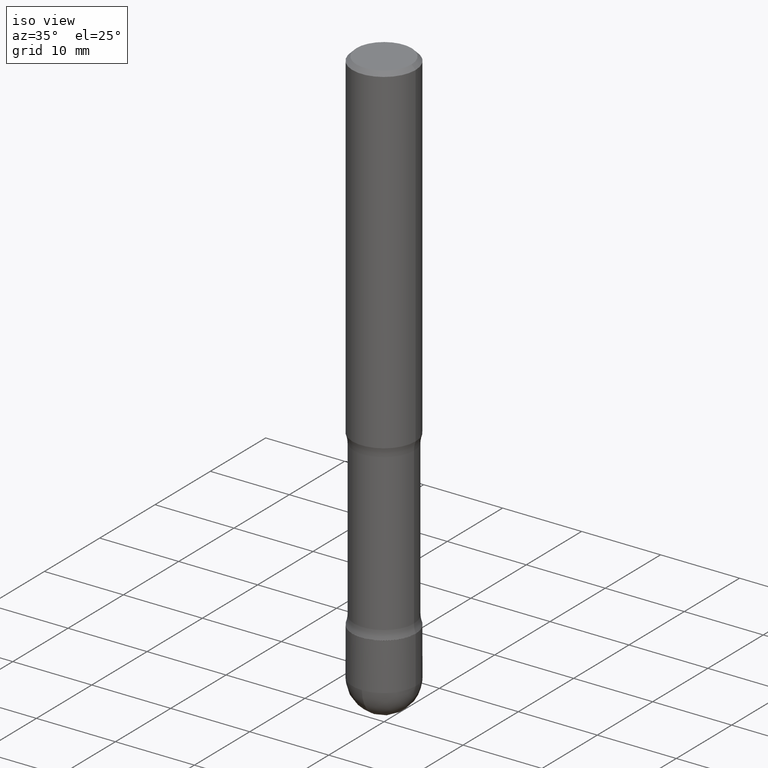
[diagram: clean part render]
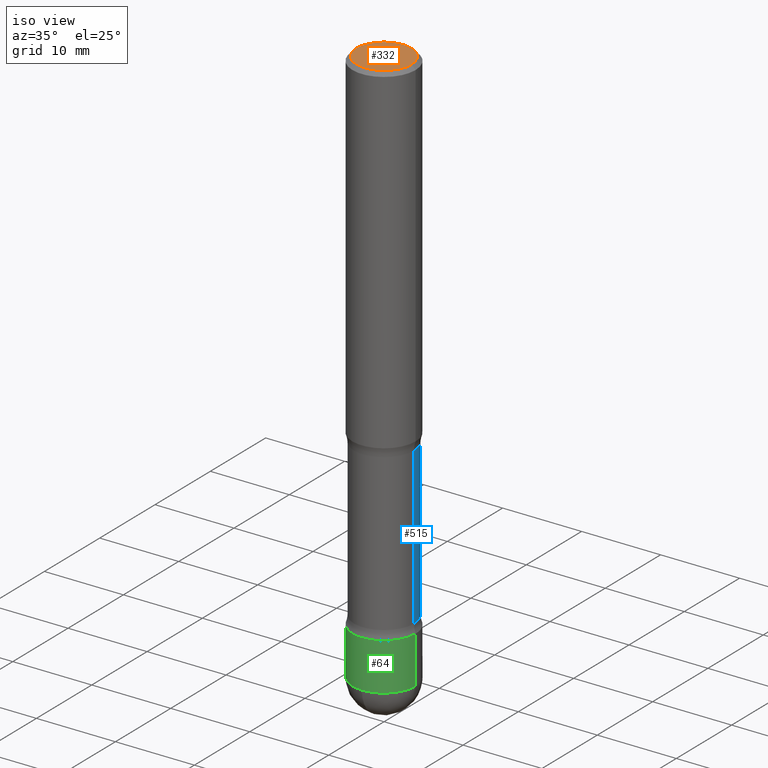
[diagram: same view with three faces highlighted in distinct colors, each labeled with its STEP entity id]
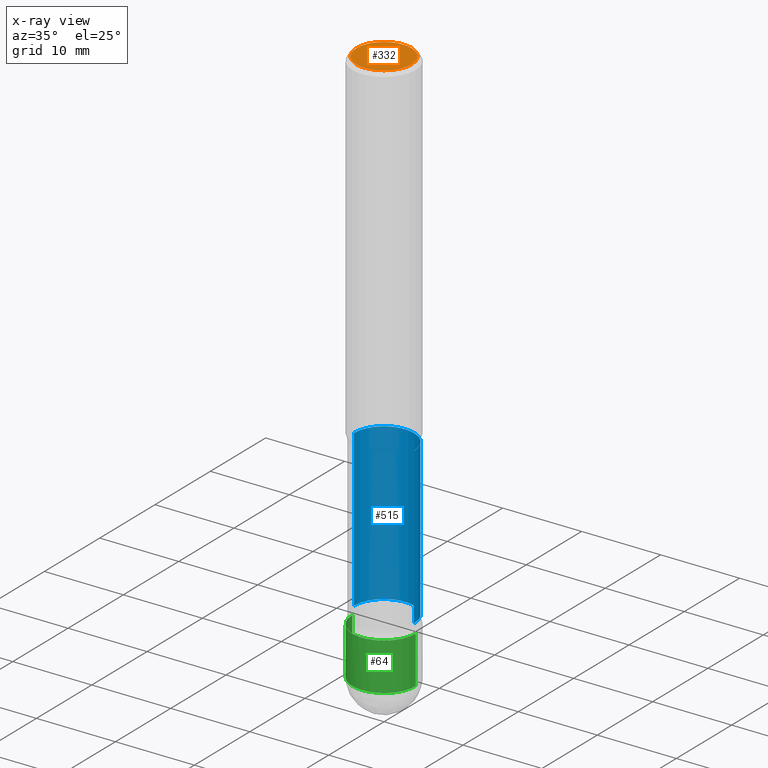
[diagram: x-ray of the same camera — body ghosted, the three highlighted faces saturated]
A machine part, iso view with three faces highlighted in distinct colors.
The next image is the same camera in x-ray (body ghosted, the three faces saturated) — at least one of them is partly hidden behind the body in this view.
Their STEP definitions:

[orange] entity #332 — the highlighted planar face has unit normal (-0, 0, 1).
#3 = AXIS2_PLACEMENT_3D ( 'NONE', #98, #523, #449 ) ;
#33 = DIRECTION ( 'NONE',  ( -1.000000000000000000, 6.982962677686265922E-15, -4.876176775795935793E-29 ) ) ;
#48 = DIRECTION ( 'NONE',  ( 1.000000000000000000, -6.982962677686265922E-15, 4.876176775795935793E-29 ) ) ;
#51 = FACE_OUTER_BOUND ( 'NONE', #57, .T. ) ;
#57 = EDGE_LOOP ( 'NONE', ( #444, #560 ) ) ;
#80 = VERTEX_POINT ( 'NONE', #550 ) ;
#98 = CARTESIAN_POINT ( 'NONE',  ( 0.000000000000000000, 0.000000000000000000, 0.000000000000000000 ) ) ;
#129 = CARTESIAN_POINT ( 'NONE',  ( -0.1374999999999997335, 9.601573681818597005E-16, -6.704743066719399103E-30 ) ) ;
#134 = VERTEX_POINT ( 'NONE', #129 ) ;
#213 = EDGE_CURVE ( 'NONE', #134, #80, #374, .T. ) ;
#232 = CIRCLE ( 'NONE', #486, 0.1374999999999997335 ) ;
#253 = CARTESIAN_POINT ( 'NONE',  ( 0.000000000000000000, 0.000000000000000000, 0.000000000000000000 ) ) ;
#275 = PLANE ( 'NONE',  #279 ) ;
#279 = AXIS2_PLACEMENT_3D ( 'NONE', #453, #412, #48 ) ;
#332 = ADVANCED_FACE ( 'NONE', ( #51 ), #275, .T. ) ;
#374 = CIRCLE ( 'NONE', #3, 0.1374999999999997335 ) ;
#412 = DIRECTION ( 'NONE',  ( -2.438088387897960049E-29, 3.491481338843145188E-15, 1.000000000000000000 ) ) ;
#430 = DIRECTION ( 'NONE',  ( 2.445468806185136597E-29, -3.491481338843145583E-15, -1.000000000000000000 ) ) ;
#444 = ORIENTED_EDGE ( 'NONE', *, *, #213, .F. ) ;
#449 = DIRECTION ( 'NONE',  ( -1.000000000000000000, 6.982962677686265922E-15, -4.876176775795935793E-29 ) ) ;
#453 = CARTESIAN_POINT ( 'NONE',  ( 9.601573681818597005E-16, 0.1374999999999997335, -4.779444278458813133E-16 ) ) ;
#466 = EDGE_CURVE ( 'NONE', #80, #134, #232, .T. ) ;
#486 = AXIS2_PLACEMENT_3D ( 'NONE', #253, #430, #33 ) ;
#523 = DIRECTION ( 'NONE',  ( 2.445468806185136597E-29, -3.491481338843145583E-15, -1.000000000000000000 ) ) ;
#550 = CARTESIAN_POINT ( 'NONE',  ( 0.1374999999999997335, -1.046838268059730322E-15, 7.017535886221982554E-30 ) ) ;
#560 = ORIENTED_EDGE ( 'NONE', *, *, #466, .F. ) ;

[blue] entity #515 — the highlighted cylindrical surface (partial cylindrical patch) has radius 3.7973 mm, axis along (0, -0, -1).
#5 = VERTEX_POINT ( 'NONE', #70 ) ;
#10 = CARTESIAN_POINT ( 'NONE',  ( 6.258199221908381703E-29, -8.935049894233492186E-15, -2.559099999999999486 ) ) ;
#35 = CARTESIAN_POINT ( 'NONE',  ( -0.1495000000000001328, -5.020750165256446212E-15, -1.736999999999999877 ) ) ;
#70 = CARTESIAN_POINT ( 'NONE',  ( 0.1495000000000001328, -7.040976938773929541E-15, -1.736999999999999877 ) ) ;
#96 = CYLINDRICAL_SURFACE ( 'NONE', #206, 0.1494999999999999107 ) ;
#109 = VECTOR ( 'NONE', #125, 39.37007874015748143 ) ;
#125 = DIRECTION ( 'NONE',  ( 2.445468806185136877E-29, -3.491481338843145188E-15, -1.000000000000000000 ) ) ;
#149 = EDGE_CURVE ( 'NONE', #5, #425, #451, .T. ) ;
#152 = AXIS2_PLACEMENT_3D ( 'NONE', #478, #210, #249 ) ;
#174 = ORIENTED_EDGE ( 'NONE', *, *, #149, .T. ) ;
#176 = DIRECTION ( 'NONE',  ( 2.445468806185136597E-29, -3.491481338843145583E-15, -1.000000000000000000 ) ) ;
#177 = EDGE_CURVE ( 'NONE', #265, #5, #216, .T. ) ;
#179 = EDGE_LOOP ( 'NONE', ( #501, #174, #259, #324 ) ) ;
#206 = AXIS2_PLACEMENT_3D ( 'NONE', #10, #176, #352 ) ;
#209 = CARTESIAN_POINT ( 'NONE',  ( 4.247779316343581811E-29, -6.064703085570544000E-15, -1.736999999999999877 ) ) ;
#210 = DIRECTION ( 'NONE',  ( 2.445468806185136597E-29, -3.491481338843145583E-15, -1.000000000000000000 ) ) ;
#216 = CIRCLE ( 'NONE', #345, 0.1495000000000001328 ) ;
#248 = VERTEX_POINT ( 'NONE', #492 ) ;
#249 = DIRECTION ( 'NONE',  ( -1.000000000000000000, 6.982962677686265922E-15, 0.000000000000000000 ) ) ;
#259 = ORIENTED_EDGE ( 'NONE', *, *, #418, .F. ) ;
#265 = VERTEX_POINT ( 'NONE', #35 ) ;
#266 = DIRECTION ( 'NONE',  ( -1.000000000000000000, 6.982962677686265133E-15, 0.000000000000000000 ) ) ;
#285 = LINE ( 'NONE', #473, #413 ) ;
#322 = CARTESIAN_POINT ( 'NONE',  ( 0.1494999999999999107, -9.960694344900336647E-15, -2.559099999999999486 ) ) ;
#324 = ORIENTED_EDGE ( 'NONE', *, *, #410, .F. ) ;
#345 = AXIS2_PLACEMENT_3D ( 'NONE', #209, #361, #266 ) ;
#352 = DIRECTION ( 'NONE',  ( -1.000000000000000000, 6.982962677686269077E-15, 0.000000000000000000 ) ) ;
#361 = DIRECTION ( 'NONE',  ( 2.445468806185136597E-29, -3.491481338843145583E-15, -1.000000000000000000 ) ) ;
#382 = DIRECTION ( 'NONE',  ( 2.445468806185136877E-29, -3.491481338843145188E-15, -1.000000000000000000 ) ) ;
#410 = EDGE_CURVE ( 'NONE', #265, #248, #285, .T. ) ;
#413 = VECTOR ( 'NONE', #382, 39.37007874015748143 ) ;
#418 = EDGE_CURVE ( 'NONE', #248, #425, #471, .T. ) ;
#425 = VERTEX_POINT ( 'NONE', #428 ) ;
#428 = CARTESIAN_POINT ( 'NONE',  ( 0.1494999999999996887, -8.448708351114313636E-15, -2.515099999999999447 ) ) ;
#451 = LINE ( 'NONE', #322, #109 ) ;
#471 = CIRCLE ( 'NONE', #152, 0.1494999999999996887 ) ;
#473 = CARTESIAN_POINT ( 'NONE',  ( -0.1494999999999999107, -7.891096973919396765E-15, -2.559099999999999486 ) ) ;
#478 = CARTESIAN_POINT ( 'NONE',  ( 6.150598594436236473E-29, -8.781424715324393562E-15, -2.515099999999999447 ) ) ;
#482 = FACE_OUTER_BOUND ( 'NONE', #179, .T. ) ;
#492 = CARTESIAN_POINT ( 'NONE',  ( -0.1494999999999996887, -7.737471795010298140E-15, -2.515099999999999447 ) ) ;
#501 = ORIENTED_EDGE ( 'NONE', *, *, #177, .T. ) ;
#515 = ADVANCED_FACE ( 'NONE', ( #482 ), #96, .T. ) ;

[green] entity #64 — the highlighted cylindrical surface (partial cylindrical patch) has radius 4.0005 mm, axis along (-0, 0, 1).
#8 = CARTESIAN_POINT ( 'NONE',  ( 0.1574999999999995015, -1.003486651596907730E-14, -2.559099999999999486 ) ) ;
#14 = ORIENTED_EDGE ( 'NONE', *, *, #39, .T. ) ;
#16 = DIRECTION ( 'NONE',  ( -2.445468806185136597E-29, 3.491481338843145583E-15, 1.000000000000000000 ) ) ;
#17 = LINE ( 'NONE', #409, #326 ) ;
#38 = CARTESIAN_POINT ( 'NONE',  ( 0.1574999999999995015, -1.099816621735583536E-15, 7.679978421878574211E-30 ) ) ;
#39 = EDGE_CURVE ( 'NONE', #237, #427, #554, .T. ) ;
#58 = DIRECTION ( 'NONE',  ( 1.000000000000000000, -6.982962677686266711E-15, 4.876176775795935793E-29 ) ) ;
#64 = ADVANCED_FACE ( 'NONE', ( #426 ), #546, .T. ) ;
#82 = CARTESIAN_POINT ( 'NONE',  ( 0.1574999999999995015, -1.044721046208645143E-14, -2.795299999999999674 ) ) ;
#113 = DIRECTION ( 'NONE',  ( -2.445468806185136597E-29, 3.491481338843145583E-15, 1.000000000000000000 ) ) ;
#114 = EDGE_CURVE ( 'NONE', #427, #316, #431, .T. ) ;
#135 = DIRECTION ( 'NONE',  ( 1.000000000000000000, -6.982962677686271444E-15, 0.000000000000000000 ) ) ;
#137 = ORIENTED_EDGE ( 'NONE', *, *, #114, .T. ) ;
#140 = EDGE_CURVE ( 'NONE', #301, #271, #17, .T. ) ;
#166 = CARTESIAN_POINT ( 'NONE',  ( -0.1574999999999995015, -8.228289031528713448E-15, -2.795299999999999674 ) ) ;
#172 = DIRECTION ( 'NONE',  ( -2.445468806185136597E-29, 3.491481338843145583E-15, 1.000000000000000000 ) ) ;
#180 = CARTESIAN_POINT ( 'NONE',  ( -1.099816621735516286E-15, -0.1575000000000094658, -2.795299999999998786 ) ) ;
#181 = CARTESIAN_POINT ( 'NONE',  ( 6.835818953929311707E-29, -9.759737786468243605E-15, -2.795299999999999674 ) ) ;
#217 = CIRCLE ( 'NONE', #399, 0.1574999999999995015 ) ;
#237 = VERTEX_POINT ( 'NONE', #180 ) ;
#246 = AXIS2_PLACEMENT_3D ( 'NONE', #181, #16, #303 ) ;
#247 = CARTESIAN_POINT ( 'NONE',  ( 6.835818953929311707E-29, -9.759737786468243605E-15, -2.795299999999999674 ) ) ;
#271 = VERTEX_POINT ( 'NONE', #344 ) ;
#280 = ORIENTED_EDGE ( 'NONE', *, *, #355, .F. ) ;
#283 = AXIS2_PLACEMENT_3D ( 'NONE', #559, #328, #58 ) ;
#290 = AXIS2_PLACEMENT_3D ( 'NONE', #247, #113, #372 ) ;
#301 = VERTEX_POINT ( 'NONE', #166 ) ;
#303 = DIRECTION ( 'NONE',  ( 1.000000000000000000, -6.982962677686271444E-15, 0.000000000000000000 ) ) ;
#316 = VERTEX_POINT ( 'NONE', #8 ) ;
#326 = VECTOR ( 'NONE', #484, 39.37007874015748143 ) ;
#328 = DIRECTION ( 'NONE',  ( -2.445468806185136597E-29, 3.491481338843145583E-15, 1.000000000000000000 ) ) ;
#344 = CARTESIAN_POINT ( 'NONE',  ( -0.1574999999999995015, -8.228289031528713448E-15, -2.559099999999999486 ) ) ;
#355 = EDGE_CURVE ( 'NONE', #271, #316, #217, .T. ) ;
#360 = EDGE_LOOP ( 'NONE', ( #369, #390, #14, #137, #280 ) ) ;
#369 = ORIENTED_EDGE ( 'NONE', *, *, #140, .F. ) ;
#372 = DIRECTION ( 'NONE',  ( 1.000000000000000000, -6.982962677686271444E-15, 0.000000000000000000 ) ) ;
#390 = ORIENTED_EDGE ( 'NONE', *, *, #528, .T. ) ;
#393 = DIRECTION ( 'NONE',  ( -2.445468806185136877E-29, 3.491481338843145188E-15, 1.000000000000000000 ) ) ;
#399 = AXIS2_PLACEMENT_3D ( 'NONE', #458, #172, #135 ) ;
#409 = CARTESIAN_POINT ( 'NONE',  ( -0.1574999999999995015, 1.119104808822154251E-15, -7.747322767151453163E-30 ) ) ;
#426 = FACE_OUTER_BOUND ( 'NONE', #360, .T. ) ;
#427 = VERTEX_POINT ( 'NONE', #82 ) ;
#431 = LINE ( 'NONE', #38, #504 ) ;
#458 = CARTESIAN_POINT ( 'NONE',  ( 6.258199221908381703E-29, -8.935049894233492186E-15, -2.559099999999999486 ) ) ;
#464 = CIRCLE ( 'NONE', #246, 0.1574999999999995015 ) ;
#484 = DIRECTION ( 'NONE',  ( -2.445468806185136877E-29, 3.491481338843145188E-15, 1.000000000000000000 ) ) ;
#504 = VECTOR ( 'NONE', #393, 39.37007874015748143 ) ;
#528 = EDGE_CURVE ( 'NONE', #301, #237, #464, .T. ) ;
#546 = CYLINDRICAL_SURFACE ( 'NONE', #283, 0.1574999999999995015 ) ;
#554 = CIRCLE ( 'NONE', #290, 0.1574999999999995015 ) ;
#559 = CARTESIAN_POINT ( 'NONE',  ( 0.000000000000000000, 0.000000000000000000, 0.000000000000000000 ) ) ;